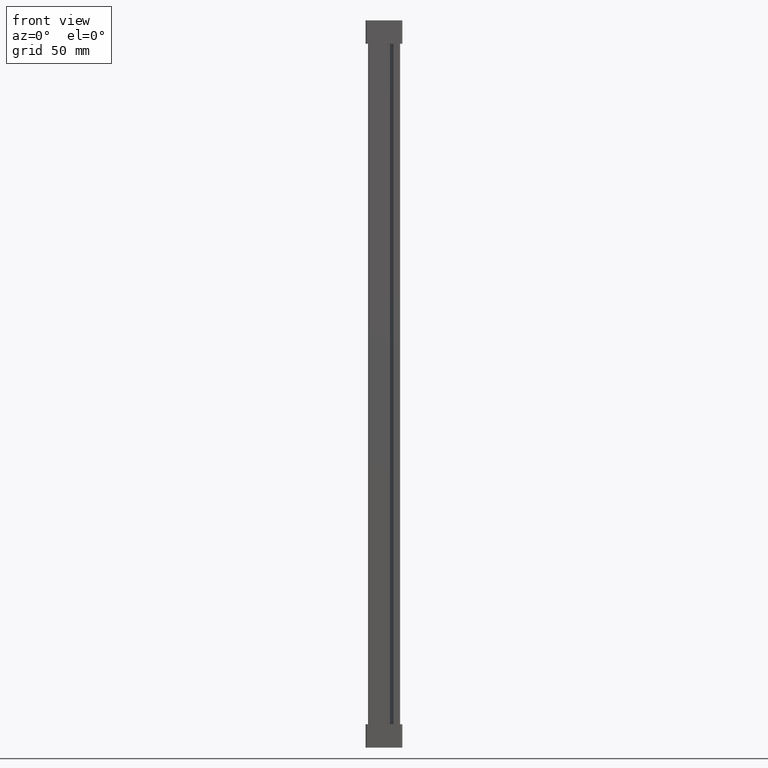
[diagram: clean part render]
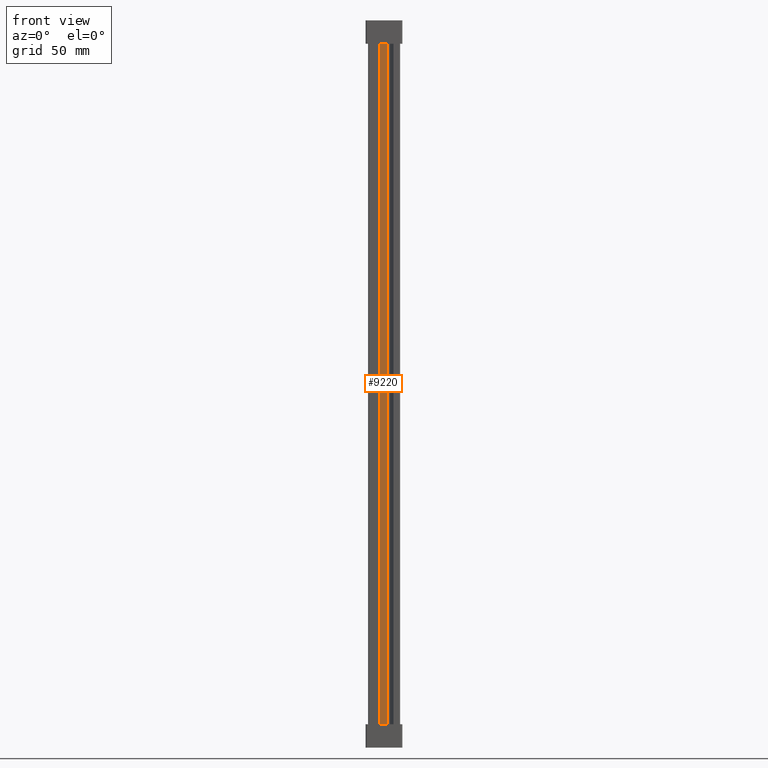
[diagram: same view with one face highlighted and labeled with its STEP entity id]
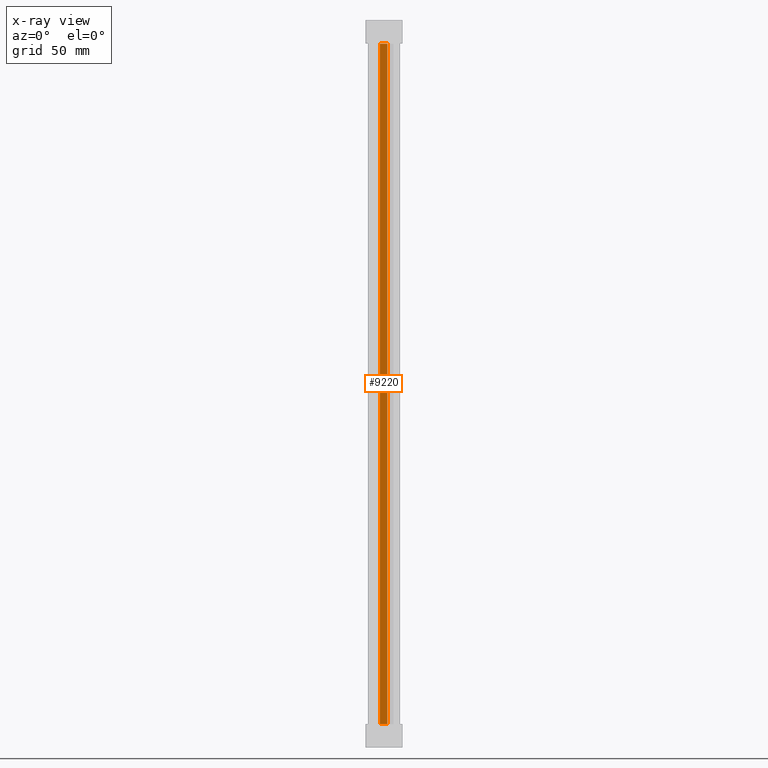
[diagram: x-ray of the same camera — body ghosted, the highlighted face saturated]
A machine part, front view. The second image highlights one B-rep face of the part: STEP entity #9220.
The next image is the same camera in x-ray: the body ghosted, the highlighted face saturated — about 0% of this face is hidden behind the body in this view.
In plain terms, the highlighted planar face has unit normal (0, 1, 0).
Its self-contained STEP definition (entity closure, byte-faithful):
#2313 = VECTOR ( 'NONE', #7101, 1000.000000000000000 ) ;
#2425 = VECTOR ( 'NONE', #7337, 1000.000000000000000 ) ;
#2453 = VECTOR ( 'NONE', #21195, 1000.000000000000000 ) ;
#2470 = VECTOR ( 'NONE', #21165, 1000.000000000000000 ) ;
#7101 = DIRECTION ( 'NONE',  ( 0.0000000000000000000, -0.0000000000000000000, 1.000000000000000000 ) ) ;
#7126 = LINE ( 'NONE', #7128, #2313 ) ;
#7128 = CARTESIAN_POINT ( 'NONE',  ( 4.549999999999909200, -2.775557561562891400E-013, 219.0000000000000000 ) ) ;
#7334 = LINE ( 'NONE', #7353, #2425 ) ;
#7337 = DIRECTION ( 'NONE',  ( -1.000000000000000000, 0.0000000000000000000, -4.965472477636011600E-013 ) ) ;
#7353 = CARTESIAN_POINT ( 'NONE',  ( 6.466000000103465900, -2.775557561562891400E-013, -94.60000000005538800 ) ) ;
#8253 = CARTESIAN_POINT ( 'NONE',  ( 7.950000000000123600, -2.775557561562891400E-013, -94.60000000005466300 ) ) ;
#8259 = CARTESIAN_POINT ( 'NONE',  ( 4.549999999999910100, -2.775557561562891400E-013, -94.60000000005634000 ) ) ;
#8268 = CARTESIAN_POINT ( 'NONE',  ( 4.549999999999910100, -2.775557561562891400E-013, 208.6000000000563300 ) ) ;
#8272 = CARTESIAN_POINT ( 'NONE',  ( 7.950000000000123600, -2.775557561562891400E-013, 208.6000000000546200 ) ) ;
#9220 = ADVANCED_FACE ( 'NONE', ( #19105 ), #19094, .F. ) ;
#13411 = ORIENTED_EDGE ( 'NONE', *, *, #29688, .F. ) ;
#13444 = ORIENTED_EDGE ( 'NONE', *, *, #29592, .F. ) ;
#13456 = ORIENTED_EDGE ( 'NONE', *, *, #29685, .F. ) ;
#13512 = ORIENTED_EDGE ( 'NONE', *, *, #29655, .F. ) ;
#19094 = PLANE ( 'NONE',  #26187 ) ;
#19105 = FACE_OUTER_BOUND ( 'NONE', #27807, .T. ) ;
#19106 = CARTESIAN_POINT ( 'NONE',  ( 6.525548534933072600, -2.775557561562891400E-013, 219.0000000000000000 ) ) ;
#19117 = DIRECTION ( 'NONE',  ( 0.0000000000000000000, -0.0000000000000000000, 1.000000000000000000 ) ) ;
#19161 = DIRECTION ( 'NONE',  ( 0.0000000000000000000, 1.000000000000000000, 0.0000000000000000000 ) ) ;
#21138 = CARTESIAN_POINT ( 'NONE',  ( 6.466000000103465900, -2.775557561562891400E-013, 208.6000000000553900 ) ) ;
#21148 = LINE ( 'NONE', #21190, #2470 ) ;
#21165 = DIRECTION ( 'NONE',  ( -0.0000000000000000000, 0.0000000000000000000, -1.000000000000000000 ) ) ;
#21190 = CARTESIAN_POINT ( 'NONE',  ( 7.950000000000123600, -2.775557561562891400E-013, 219.0000000000000000 ) ) ;
#21195 = DIRECTION ( 'NONE',  ( 1.000000000000000000, 0.0000000000000000000, -4.965472477636011600E-013 ) ) ;
#21238 = LINE ( 'NONE', #21138, #2453 ) ;
#22628 = VERTEX_POINT ( 'NONE', #8259 ) ;
#22659 = VERTEX_POINT ( 'NONE', #8272 ) ;
#22681 = VERTEX_POINT ( 'NONE', #8253 ) ;
#22704 = VERTEX_POINT ( 'NONE', #8268 ) ;
#26187 = AXIS2_PLACEMENT_3D ( 'NONE', #19106, #19161, #19117 ) ;
#27807 = EDGE_LOOP ( 'NONE', ( #13411, #13444, #13512, #13456 ) ) ;
#29592 = EDGE_CURVE ( 'NONE', #22628, #22704, #7126, .T. ) ;
#29655 = EDGE_CURVE ( 'NONE', #22681, #22628, #7334, .T. ) ;
#29685 = EDGE_CURVE ( 'NONE', #22659, #22681, #21148, .T. ) ;
#29688 = EDGE_CURVE ( 'NONE', #22704, #22659, #21238, .T. ) ;